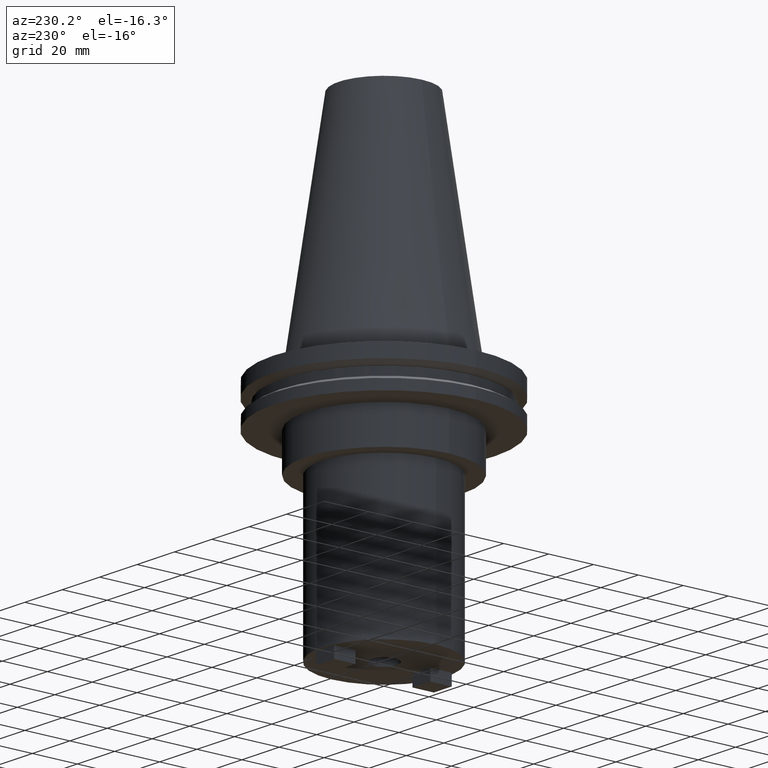
[diagram: clean part render]
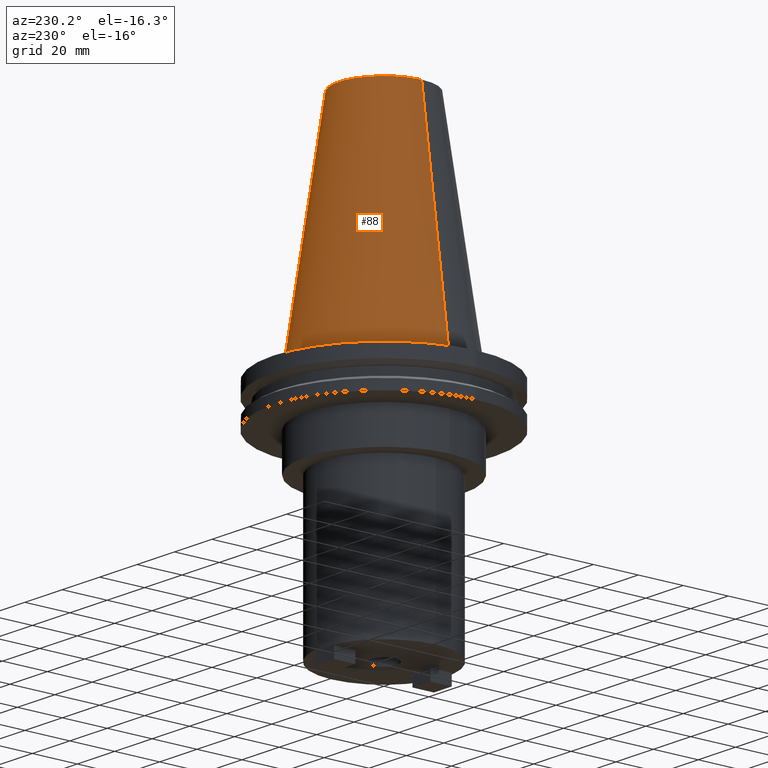
[diagram: same view with one face highlighted and labeled with its STEP entity id]
A machine part, auxiliary view. The second image highlights one B-rep face of the part: STEP entity #88.
In plain terms, the highlighted conical surface has half-angle 8.297 deg.
Its self-contained STEP definition (entity closure, byte-faithful):
#43 = AXIS2_PLACEMENT_3D ( 'NONE', #142, #729, #488 ) ;
#88 = ADVANCED_FACE ( 'NONE', ( #401 ), #1027, .T. ) ;
#89 = CARTESIAN_POINT ( 'NONE',  ( -20.10819343178871321, 0.000000000000000000, 101.5999999999999801 ) ) ;
#130 = AXIS2_PLACEMENT_3D ( 'NONE', #318, #984, #477 ) ;
#131 = VECTOR ( 'NONE', #875, 999.9999999999998863 ) ;
#142 = CARTESIAN_POINT ( 'NONE',  ( 0.000000000000000000, 0.000000000000000000, 0.000000000000000000 ) ) ;
#165 = CARTESIAN_POINT ( 'NONE',  ( 0.000000000000000000, 0.000000000000000000, 101.5999999999999801 ) ) ;
#180 = EDGE_CURVE ( 'NONE', #281, #453, #649, .T. ) ;
#182 = EDGE_LOOP ( 'NONE', ( #479, #662, #366, #952 ) ) ;
#184 = EDGE_CURVE ( 'NONE', #453, #759, #265, .T. ) ;
#257 = CARTESIAN_POINT ( 'NONE',  ( 20.10819343178871321, 3.369811209154858606E-15, 101.5999999999999801 ) ) ;
#265 = CIRCLE ( 'NONE', #43, 34.92499999999999005 ) ;
#281 = VERTEX_POINT ( 'NONE', #257 ) ;
#309 = DIRECTION ( 'NONE',  ( -0.000000000000000000, -0.000000000000000000, 1.000000000000000000 ) ) ;
#318 = CARTESIAN_POINT ( 'NONE',  ( 0.000000000000000000, 0.000000000000000000, 0.000000000000000000 ) ) ;
#366 = ORIENTED_EDGE ( 'NONE', *, *, #184, .T. ) ;
#399 = EDGE_CURVE ( 'NONE', #1066, #759, #962, .T. ) ;
#401 = FACE_OUTER_BOUND ( 'NONE', #182, .T. ) ;
#453 = VERTEX_POINT ( 'NONE', #609 ) ;
#477 = DIRECTION ( 'NONE',  ( -1.000000000000000000, 0.000000000000000000, 0.000000000000000000 ) ) ;
#479 = ORIENTED_EDGE ( 'NONE', *, *, #935, .F. ) ;
#488 = DIRECTION ( 'NONE',  ( 1.000000000000000000, 0.000000000000000000, 0.000000000000000000 ) ) ;
#499 = CIRCLE ( 'NONE', #658, 20.10819343178871321 ) ;
#508 = CARTESIAN_POINT ( 'NONE',  ( -34.92499999999999005, 0.000000000000000000, 0.000000000000000000 ) ) ;
#578 = CARTESIAN_POINT ( 'NONE',  ( 34.92499999999999005, 4.277078946022130098E-15, 0.000000000000000000 ) ) ;
#609 = CARTESIAN_POINT ( 'NONE',  ( 34.92499999999999005, 4.277078946022130098E-15, 0.000000000000000000 ) ) ;
#649 = LINE ( 'NONE', #578, #834 ) ;
#658 = AXIS2_PLACEMENT_3D ( 'NONE', #165, #309, #754 ) ;
#662 = ORIENTED_EDGE ( 'NONE', *, *, #180, .T. ) ;
#697 = CARTESIAN_POINT ( 'NONE',  ( -34.92499999999999005, 0.000000000000000000, 0.000000000000000000 ) ) ;
#729 = DIRECTION ( 'NONE',  ( -0.000000000000000000, -0.000000000000000000, 1.000000000000000000 ) ) ;
#754 = DIRECTION ( 'NONE',  ( 1.000000000000000000, 0.000000000000000000, 0.000000000000000000 ) ) ;
#759 = VERTEX_POINT ( 'NONE', #508 ) ;
#834 = VECTOR ( 'NONE', #896, 999.9999999999998863 ) ;
#875 = DIRECTION ( 'NONE',  ( -0.1443082272672999988, 0.000000000000000000, -0.9895327864921755756 ) ) ;
#896 = DIRECTION ( 'NONE',  ( 0.1443082272672999988, 1.767266086135277066E-17, -0.9895327864921755756 ) ) ;
#935 = EDGE_CURVE ( 'NONE', #281, #1066, #499, .T. ) ;
#952 = ORIENTED_EDGE ( 'NONE', *, *, #399, .F. ) ;
#962 = LINE ( 'NONE', #697, #131 ) ;
#984 = DIRECTION ( 'NONE',  ( 0.000000000000000000, 0.000000000000000000, -1.000000000000000000 ) ) ;
#1027 = CONICAL_SURFACE ( 'NONE', #130, 34.92499999999999005, 0.1448138465474119452 ) ;
#1066 = VERTEX_POINT ( 'NONE', #89 ) ;